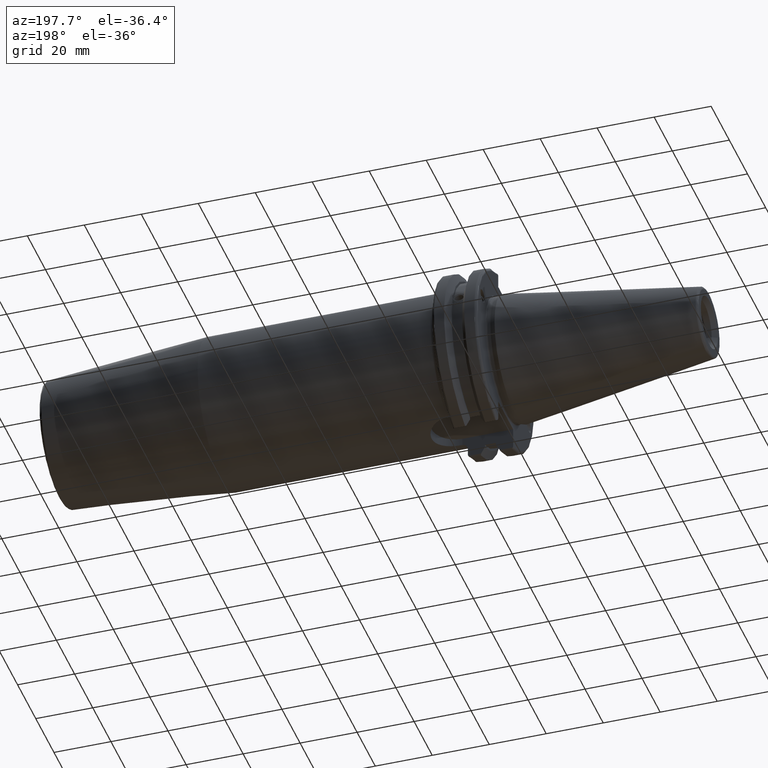
[diagram: clean part render]
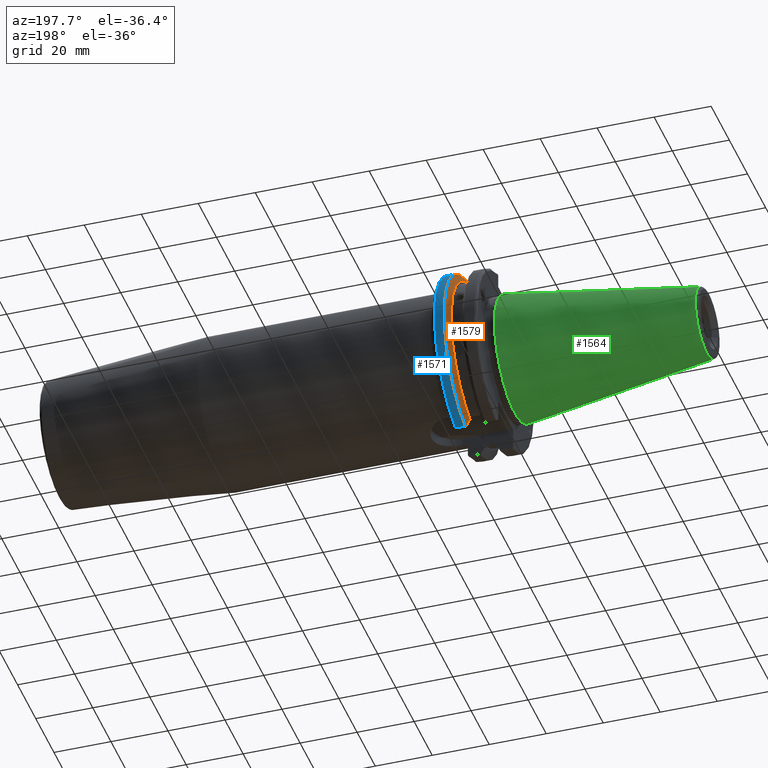
[diagram: same view with three faces highlighted in distinct colors, each labeled with its STEP entity id]
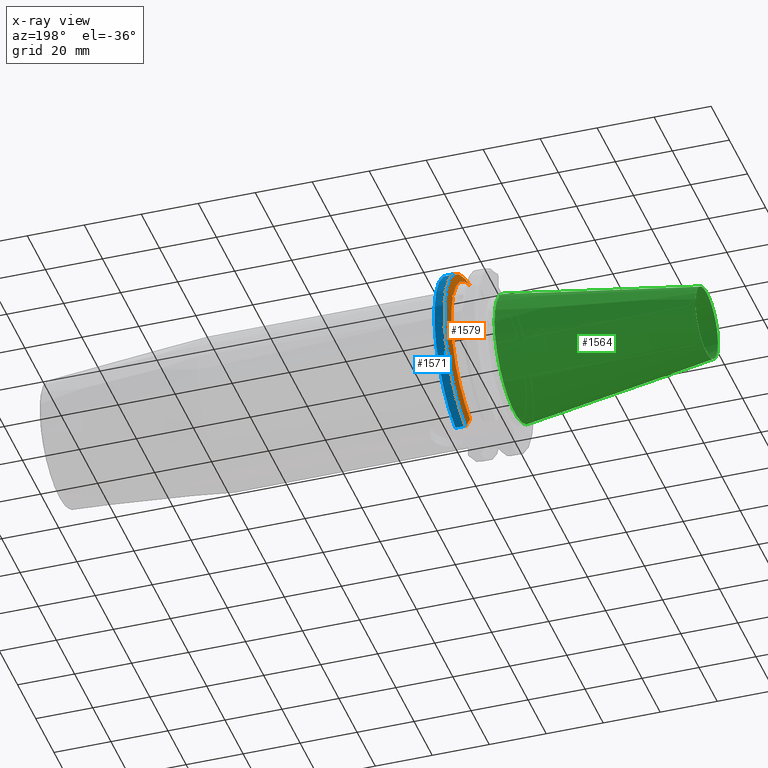
[diagram: x-ray of the same camera — body ghosted, the three highlighted faces saturated]
A machine part, auxiliary view with three faces highlighted in distinct colors.
The next image is the same camera in x-ray (body ghosted, the three faces saturated) — at least one of them is partly hidden behind the body in this view.
Their STEP definitions:

[orange] entity #1579 — the highlighted conical surface has half-angle 60 deg.
#23=(
BOUNDED_CURVE()
B_SPLINE_CURVE(2,(#2888,#2889,#2890),.UNSPECIFIED.,.F.,.F.)
B_SPLINE_CURVE_WITH_KNOTS((3,3),(0.329353533631226,0.393258405001025),
 .UNSPECIFIED.)
CURVE()
GEOMETRIC_REPRESENTATION_ITEM()
RATIONAL_B_SPLINE_CURVE((1.00047644010577,1.00028444218285,1.))
REPRESENTATION_ITEM('')
);
#24=(
BOUNDED_CURVE()
B_SPLINE_CURVE(2,(#2902,#2903,#2904),.UNSPECIFIED.,.F.,.F.)
B_SPLINE_CURVE_WITH_KNOTS((3,3),(0.0550586467393769,0.331607789535852),
 .UNSPECIFIED.)
CURVE()
GEOMETRIC_REPRESENTATION_ITEM()
RATIONAL_B_SPLINE_CURVE((1.00031614444922,1.00095203903643,1.))
REPRESENTATION_ITEM('')
);
#29=(
BOUNDED_CURVE()
B_SPLINE_CURVE(2,(#3058,#3059,#3060),.UNSPECIFIED.,.F.,.F.)
B_SPLINE_CURVE_WITH_KNOTS((3,3),(0.,0.276549142795274),.UNSPECIFIED.)
CURVE()
GEOMETRIC_REPRESENTATION_ITEM()
RATIONAL_B_SPLINE_CURVE((1.,1.00095203903599,1.00031614444907))
REPRESENTATION_ITEM('')
);
#30=(
BOUNDED_CURVE()
B_SPLINE_CURVE(2,(#3076,#3077,#3078),.UNSPECIFIED.,.F.,.F.)
B_SPLINE_CURVE_WITH_KNOTS((3,3),(0.,0.0639048713675655),.UNSPECIFIED.)
CURVE()
GEOMETRIC_REPRESENTATION_ITEM()
RATIONAL_B_SPLINE_CURVE((1.,1.00028444218286,1.00047644010578))
REPRESENTATION_ITEM('')
);
#107=CONICAL_SURFACE('',#1779,30.3546886482472,1.0471975511966);
#197=FACE_OUTER_BOUND('',#297,.T.);
#297=EDGE_LOOP('',(#1423,#1424,#1425,#1426,#1427,#1428,#1429,#1430,#1431));
#351=CIRCLE('',#1710,28.9593772964944);
#374=CIRCLE('',#1765,31.75);
#381=CIRCLE('',#1780,28.9593772964944);
#578=B_SPLINE_CURVE_WITH_KNOTS('',3,(#2694,#2695,#2696,#2697,#2698,#2699,
#2700,#2701),.UNSPECIFIED.,.F.,.F.,(4,2,2,4),(0.451995700189023,0.464547828547662,
0.504528771685167,0.544509714822673),.UNSPECIFIED.);
#582=B_SPLINE_CURVE_WITH_KNOTS('',3,(#2756,#2757,#2758,#2759,#2760,#2761,
#2762,#2763),.UNSPECIFIED.,.F.,.F.,(4,2,2,4),(0.544509714822673,0.584490657960178,
0.624471601097683,0.637023729456323),.UNSPECIFIED.);
#681=VERTEX_POINT('',#2691);
#682=VERTEX_POINT('',#2693);
#689=VERTEX_POINT('',#2754);
#698=VERTEX_POINT('',#2796);
#721=VERTEX_POINT('',#2885);
#722=VERTEX_POINT('',#2887);
#747=VERTEX_POINT('',#3055);
#748=VERTEX_POINT('',#3057);
#751=VERTEX_POINT('',#3074);
#871=EDGE_CURVE('',#682,#681,#578,.T.);
#879=EDGE_CURVE('',#681,#689,#582,.T.);
#891=EDGE_CURVE('',#698,#682,#351,.T.);
#923=EDGE_CURVE('',#721,#722,#23,.T.);
#928=EDGE_CURVE('',#721,#698,#24,.T.);
#968=EDGE_CURVE('',#748,#747,#29,.T.);
#977=EDGE_CURVE('',#751,#747,#30,.T.);
#978=EDGE_CURVE('',#722,#751,#374,.T.);
#988=EDGE_CURVE('',#689,#748,#381,.T.);
#1423=ORIENTED_EDGE('',*,*,#871,.T.);
#1424=ORIENTED_EDGE('',*,*,#879,.T.);
#1425=ORIENTED_EDGE('',*,*,#988,.T.);
#1426=ORIENTED_EDGE('',*,*,#968,.T.);
#1427=ORIENTED_EDGE('',*,*,#977,.F.);
#1428=ORIENTED_EDGE('',*,*,#978,.F.);
#1429=ORIENTED_EDGE('',*,*,#923,.F.);
#1430=ORIENTED_EDGE('',*,*,#928,.T.);
#1431=ORIENTED_EDGE('',*,*,#891,.T.);
#1579=ADVANCED_FACE('',(#197),#107,.T.);
#1710=AXIS2_PLACEMENT_3D('',#2797,#2032,#2033);
#1765=AXIS2_PLACEMENT_3D('',#3080,#2181,#2182);
#1779=AXIS2_PLACEMENT_3D('',#3100,#2212,#2213);
#1780=AXIS2_PLACEMENT_3D('',#3101,#2214,#2215);
#2032=DIRECTION('center_axis',(1.,0.,0.));
#2033=DIRECTION('ref_axis',(0.,0.,-1.));
#2181=DIRECTION('center_axis',(1.,0.,0.));
#2182=DIRECTION('ref_axis',(0.,0.,-1.));
#2212=DIRECTION('center_axis',(1.,0.,0.));
#2213=DIRECTION('ref_axis',(0.,1.,0.));
#2214=DIRECTION('center_axis',(1.,0.,0.));
#2215=DIRECTION('ref_axis',(0.,0.,-1.));
#2691=CARTESIAN_POINT('',(13.2341,27.51401829017,10.0142836826778));
#2693=CARTESIAN_POINT('',(13.0491,27.4956274489925,9.09043478536244));
#2694=CARTESIAN_POINT('Ctrl Pts',(13.0491,27.4956274489925,9.09043478536245));
#2695=CARTESIAN_POINT('Ctrl Pts',(13.0632204071996,27.5087667900418,9.12860597076217));
#2696=CARTESIAN_POINT('Ctrl Pts',(13.0766929817857,27.5206055003513,9.16696618806877));
#2697=CARTESIAN_POINT('Ctrl Pts',(13.130081441159,27.5642934663232,9.32791534028656));
#2698=CARTESIAN_POINT('Ctrl Pts',(13.1682197084175,27.5867382255984,9.46717946402648));
#2699=CARTESIAN_POINT('Ctrl Pts',(13.2204106446058,27.5847569104122,9.74771639360672));
#2700=CARTESIAN_POINT('Ctrl Pts',(13.2341,27.559599249844,9.8890510252165));
#2701=CARTESIAN_POINT('Ctrl Pts',(13.2341,27.51401829017,10.0142836826778));
#2754=CARTESIAN_POINT('',(13.0491,26.9060914640648,10.7101715919071));
#2756=CARTESIAN_POINT('Ctrl Pts',(13.2341,27.51401829017,10.0142836826778));
#2757=CARTESIAN_POINT('Ctrl Pts',(13.2341,27.4684373304961,10.139516340139));
#2758=CARTESIAN_POINT('Ctrl Pts',(13.2204106446058,27.3968610665578,10.2639559818059));
#2759=CARTESIAN_POINT('Ctrl Pts',(13.1682197084175,27.2180531796526,10.4801333026531));
#2760=CARTESIAN_POINT('Ctrl Pts',(13.130081441159,27.1113422433189,10.5723885976054));
#2761=CARTESIAN_POINT('Ctrl Pts',(13.0766929817857,26.9744191989197,10.6676007180674));
#2762=CARTESIAN_POINT('Ctrl Pts',(13.0632204071996,26.9406927482839,10.6893765730703));
#2763=CARTESIAN_POINT('Ctrl Pts',(13.0491,26.9060914640648,10.7101715919071));
#2796=CARTESIAN_POINT('',(13.0491,8.19,-27.7771386827498));
#2797=CARTESIAN_POINT('Origin',(13.0491,0.,0.));
#2885=CARTESIAN_POINT('',(14.3815146964874,8.19,-30.1755016258903));
#2887=CARTESIAN_POINT('',(14.6602667690756,8.67204822802685,-30.5427254764662));
#2888=CARTESIAN_POINT('Ctrl Pts',(14.3815146964874,8.19,-30.1755016258903));
#2889=CARTESIAN_POINT('Ctrl Pts',(14.5192085187884,8.42917748263464,-30.3577067892692));
#2890=CARTESIAN_POINT('Ctrl Pts',(14.6602667690756,8.67204822802686,-30.5427254764662));
#2902=CARTESIAN_POINT('Ctrl Pts',(14.3815146964874,8.18999999999999,-30.1755016258903));
#2903=CARTESIAN_POINT('Ctrl Pts',(13.687736438474,8.19,-28.9303689539668));
#2904=CARTESIAN_POINT('Ctrl Pts',(13.0491,8.19,-27.7771386827498));
#3055=CARTESIAN_POINT('',(14.3815146964874,8.19,30.1755016258903));
#3057=CARTESIAN_POINT('',(13.0491,8.19,27.7771386827498));
#3058=CARTESIAN_POINT('Ctrl Pts',(13.0491,8.19,27.7771386827498));
#3059=CARTESIAN_POINT('Ctrl Pts',(13.687736438489,8.19,28.9303689539938));
#3060=CARTESIAN_POINT('Ctrl Pts',(14.3815146964874,8.19,30.1755016258903));
#3074=CARTESIAN_POINT('',(14.6602667690756,8.67204822802685,30.5427254764662));
#3076=CARTESIAN_POINT('Ctrl Pts',(14.6602667690756,8.67204822802687,30.5427254764662));
#3077=CARTESIAN_POINT('Ctrl Pts',(14.5192085187837,8.42917748262644,30.357706789263));
#3078=CARTESIAN_POINT('Ctrl Pts',(14.3815146964874,8.19,30.1755016258903));
#3080=CARTESIAN_POINT('Origin',(14.6602667690756,0.,0.));
#3100=CARTESIAN_POINT('Origin',(13.8546833845378,0.,0.));
#3101=CARTESIAN_POINT('Origin',(13.0491,0.,0.));

[blue] entity #1571 — the highlighted cylindrical surface (partial cylindrical patch) has radius 31.75 mm, axis along (1, 0, 0).
#189=FACE_OUTER_BOUND('',#289,.T.);
#289=EDGE_LOOP('',(#1392,#1393,#1394,#1395));
#363=CIRCLE('',#1733,31.75);
#374=CIRCLE('',#1765,31.75);
#440=LINE('',#2891,#526);
#464=LINE('',#3075,#550);
#526=VECTOR('',#2096,10.);
#550=VECTOR('',#2178,10.);
#719=VERTEX_POINT('',#2865);
#720=VERTEX_POINT('',#2874);
#722=VERTEX_POINT('',#2887);
#751=VERTEX_POINT('',#3074);
#920=EDGE_CURVE('',#719,#720,#363,.T.);
#924=EDGE_CURVE('',#722,#719,#440,.T.);
#976=EDGE_CURVE('',#720,#751,#464,.T.);
#978=EDGE_CURVE('',#722,#751,#374,.T.);
#1392=ORIENTED_EDGE('',*,*,#920,.F.);
#1393=ORIENTED_EDGE('',*,*,#924,.F.);
#1394=ORIENTED_EDGE('',*,*,#978,.T.);
#1395=ORIENTED_EDGE('',*,*,#976,.F.);
#1496=CYLINDRICAL_SURFACE('',#1764,31.75);
#1571=ADVANCED_FACE('',(#189),#1496,.T.);
#1733=AXIS2_PLACEMENT_3D('',#2875,#2091,#2092);
#1764=AXIS2_PLACEMENT_3D('',#3079,#2179,#2180);
#1765=AXIS2_PLACEMENT_3D('',#3080,#2181,#2182);
#2091=DIRECTION('center_axis',(1.,0.,0.));
#2092=DIRECTION('ref_axis',(0.,1.,-6.12323399573677E-17));
#2096=DIRECTION('',(1.,0.,0.));
#2178=DIRECTION('',(-1.,0.,0.));
#2179=DIRECTION('center_axis',(1.,0.,0.));
#2180=DIRECTION('ref_axis',(0.,1.,0.));
#2181=DIRECTION('center_axis',(1.,0.,0.));
#2182=DIRECTION('ref_axis',(0.,0.,-1.));
#2865=CARTESIAN_POINT('',(18.05,8.67204822802685,-30.5427254764662));
#2874=CARTESIAN_POINT('',(18.05,8.67204822802685,30.5427254764662));
#2875=CARTESIAN_POINT('Origin',(18.05,0.,0.));
#2887=CARTESIAN_POINT('',(14.6602667690756,8.67204822802685,-30.5427254764662));
#2891=CARTESIAN_POINT('',(16.8551333845378,8.67204822802685,-30.5427254764662));
#3074=CARTESIAN_POINT('',(14.6602667690756,8.67204822802685,30.5427254764662));
#3075=CARTESIAN_POINT('',(16.8551333845378,8.67204822802685,30.5427254764662));
#3079=CARTESIAN_POINT('Origin',(16.8551333845378,0.,0.));
#3080=CARTESIAN_POINT('Origin',(14.6602667690756,0.,0.));

[green] entity #1564 — the highlighted conical surface has half-angle 8.297 deg.
#105=CONICAL_SURFACE('',#1756,17.2484375,0.144812498238939);
#182=FACE_OUTER_BOUND('',#282,.T.);
#282=EDGE_LOOP('',(#1352,#1353,#1354,#1355,#1356));
#368=CIRCLE('',#1750,12.3966635780937);
#369=CIRCLE('',#1751,12.3966635780937);
#373=CIRCLE('',#1757,22.225);
#455=LINE('',#3052,#541);
#541=VECTOR('',#2157,17.2484375);
#742=VERTEX_POINT('',#3039);
#743=VERTEX_POINT('',#3040);
#746=VERTEX_POINT('',#3050);
#960=EDGE_CURVE('',#742,#743,#368,.T.);
#961=EDGE_CURVE('',#743,#742,#369,.T.);
#965=EDGE_CURVE('',#746,#746,#373,.T.);
#966=EDGE_CURVE('',#746,#743,#455,.T.);
#1352=ORIENTED_EDGE('',*,*,#965,.F.);
#1353=ORIENTED_EDGE('',*,*,#966,.T.);
#1354=ORIENTED_EDGE('',*,*,#960,.F.);
#1355=ORIENTED_EDGE('',*,*,#961,.F.);
#1356=ORIENTED_EDGE('',*,*,#966,.F.);
#1564=ADVANCED_FACE('',(#182),#105,.T.);
#1750=AXIS2_PLACEMENT_3D('',#3041,#2141,#2142);
#1751=AXIS2_PLACEMENT_3D('',#3042,#2143,#2144);
#1756=AXIS2_PLACEMENT_3D('',#3049,#2153,#2154);
#1757=AXIS2_PLACEMENT_3D('',#3051,#2155,#2156);
#2141=DIRECTION('center_axis',(-1.,0.,0.));
#2142=DIRECTION('ref_axis',(0.,-1.,3.06161699786838E-17));
#2143=DIRECTION('center_axis',(-1.,0.,0.));
#2144=DIRECTION('ref_axis',(0.,-1.,3.06161699786838E-17));
#2153=DIRECTION('center_axis',(1.,0.,0.));
#2154=DIRECTION('ref_axis',(0.,1.,0.));
#2155=DIRECTION('center_axis',(1.,0.,0.));
#2156=DIRECTION('ref_axis',(0.,0.,-1.));
#2157=DIRECTION('',(-0.989532981063282,0.144306893071729,1.76724974695192E-17));
#3039=CARTESIAN_POINT('',(-67.3943068930717,-1.5181534371019E-15,12.3966635780937));
#3040=CARTESIAN_POINT('',(-67.3943068930718,-12.3966635780937,-1.5181534371019E-15));
#3041=CARTESIAN_POINT('Origin',(-67.3943068930717,0.,-1.89769179637738E-15));
#3042=CARTESIAN_POINT('Origin',(-67.3943068930717,0.,-1.89769179637738E-15));
#3049=CARTESIAN_POINT('Origin',(-34.125,0.,0.));
#3050=CARTESIAN_POINT('',(0.,-22.225,-2.72177751110499E-15));
#3051=CARTESIAN_POINT('Origin',(0.,0.,0.));
#3052=CARTESIAN_POINT('',(-34.125,-17.2484375,-2.11232437746682E-15));